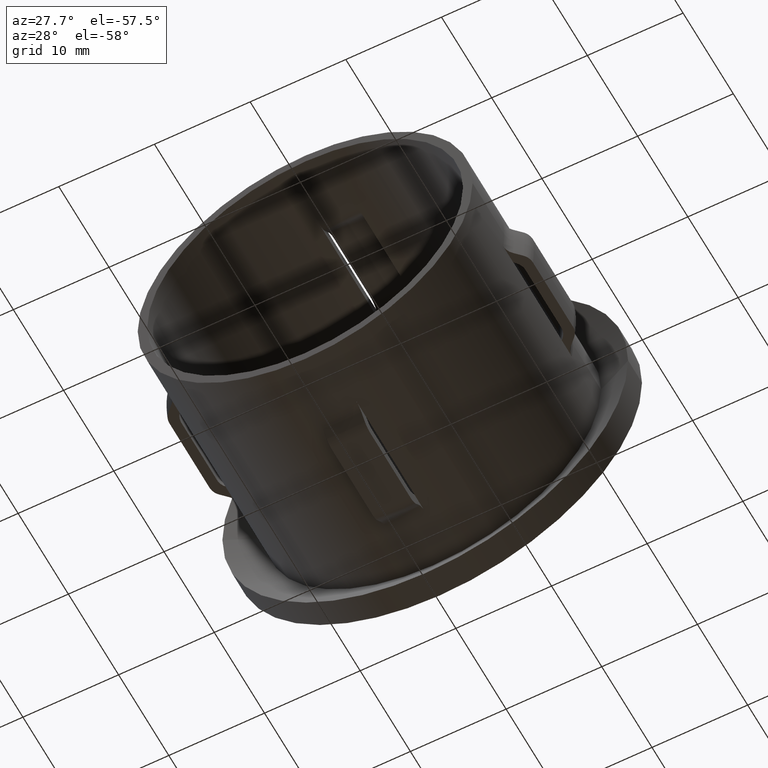
[diagram: clean part render]
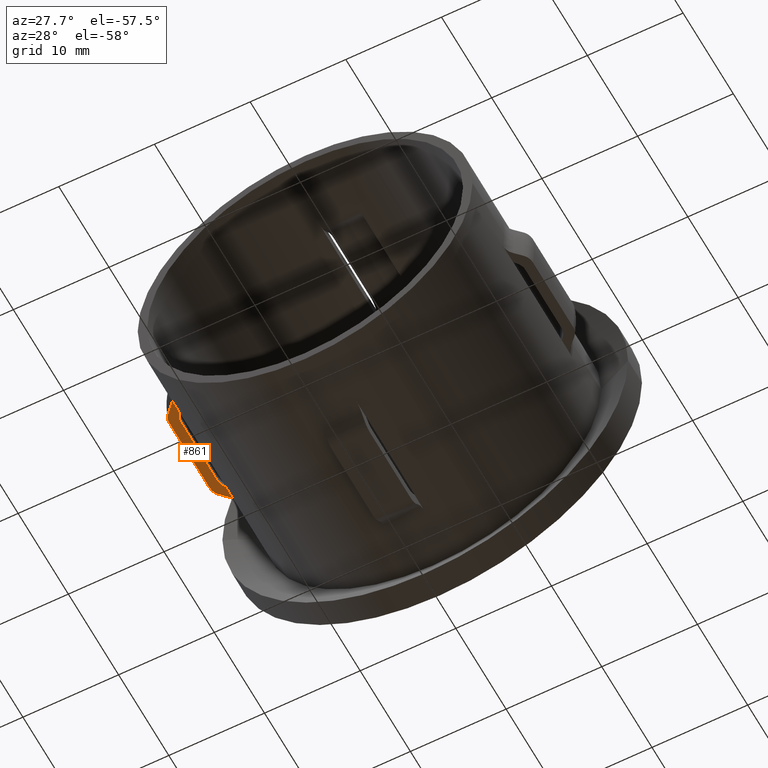
[diagram: same view with one face highlighted and labeled with its STEP entity id]
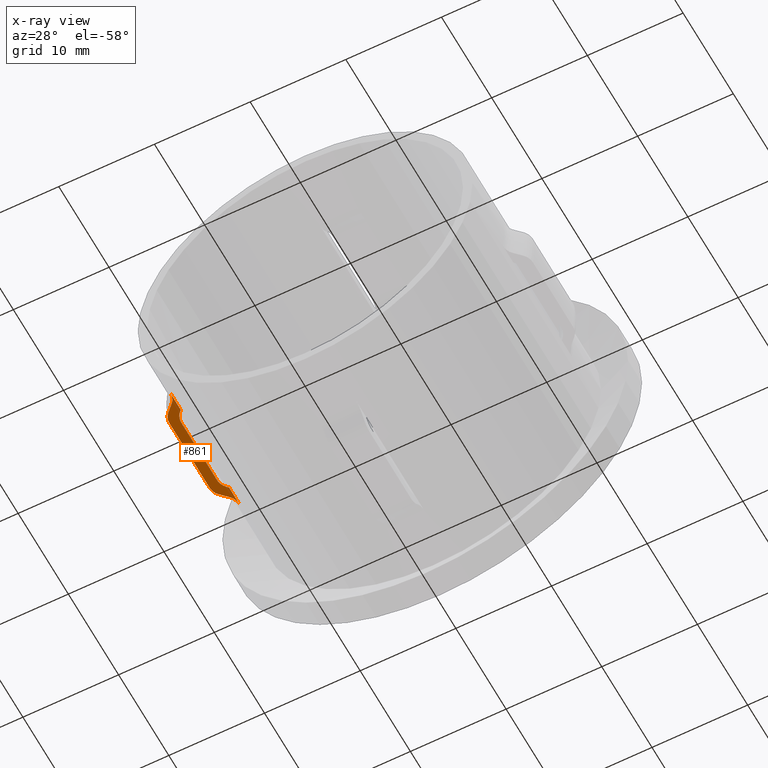
[diagram: x-ray of the same camera — body ghosted, the highlighted face saturated]
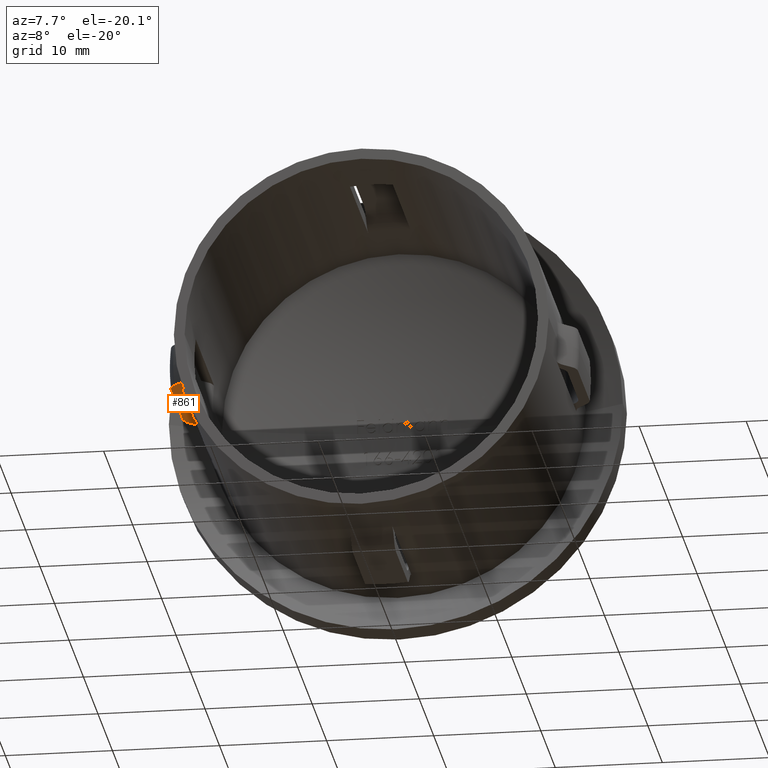
[diagram: same view with one face highlighted and labeled with its STEP entity id]
A machine part, auxiliary view. The second image highlights one B-rep face of the part: STEP entity #861.
The next image is the same camera in x-ray: the body ghosted, the highlighted face saturated — about 0% of this face is hidden behind the body in this view.
A second angle (auxiliary view) of the same face is appended — the face is thin or edge-on in the first view.
In plain terms, the highlighted planar face has unit normal (-0, 0, 1).
Its self-contained STEP definition (entity closure, byte-faithful):
#6 = ORIENTED_EDGE ( 'NONE', *, *, #6201, .T. ) ;
#80 = AXIS2_PLACEMENT_3D ( 'NONE', #12158, #8879, #12995 ) ;
#151 = CARTESIAN_POINT ( 'NONE',  ( -17.91707696693316300, 7.464392951746029700, -2.000000000000005800 ) ) ;
#198 = CARTESIAN_POINT ( 'NONE',  ( -18.47565482047987500, 18.29509002547517900, -2.000000000000005800 ) ) ;
#395 = CARTESIAN_POINT ( 'NONE',  ( -17.98916340467237200, 9.374426846787933700, -2.000000000000005800 ) ) ;
#427 = EDGE_CURVE ( 'NONE', #6335, #4319, #2676, .T. ) ;
#532 = CARTESIAN_POINT ( 'NONE',  ( -18.99499934193223900, 20.00000000000000000, -2.000000000000006200 ) ) ;
#536 = VERTEX_POINT ( 'NONE', #10250 ) ;
#628 = ORIENTED_EDGE ( 'NONE', *, *, #4672, .T. ) ;
#638 = CARTESIAN_POINT ( 'NONE',  ( -17.50892613694131900, 17.84168283548483200, -2.000000000000005300 ) ) ;
#759 = ORIENTED_EDGE ( 'NONE', *, *, #6165, .T. ) ;
#824 = CARTESIAN_POINT ( 'NONE',  ( -18.55317326083833200, 18.21801948466179900, -2.000000000000005800 ) ) ;
#861 = ADVANCED_FACE ( 'NONE', ( #10588 ), #7943, .F. ) ;
#1084 = ORIENTED_EDGE ( 'NONE', *, *, #11746, .T. ) ;
#1094 = B_SPLINE_CURVE_WITH_KNOTS ( 'NONE', 3,
 ( #3349, #11848, #12911, #1495, #13009, #3537 ),
 .UNSPECIFIED., .F., .F.,
 ( 4, 2, 4 ),
 ( 0.009288462586615928500, 0.009874882560755950100, 0.01046130253489597300 ),
 .UNSPECIFIED. ) ;
#1198 = CARTESIAN_POINT ( 'NONE',  ( -17.38533865071388000, 6.314718625761422300, -2.000000000000005300 ) ) ;
#1236 = VECTOR ( 'NONE', #12705, 1000.000000000000000 ) ;
#1246 = CARTESIAN_POINT ( 'NONE',  ( -18.55317326083746100, 8.096699141101002100, -2.000000000000005800 ) ) ;
#1282 = CARTESIAN_POINT ( 'NONE',  ( -17.38533865071375200, 20.00000000000010300, -2.000000000000005800 ) ) ;
#1338 = CARTESIAN_POINT ( 'NONE',  ( -17.68725236648193900, 7.236001098021237300, -2.000000000000005800 ) ) ;
#1403 = CARTESIAN_POINT ( 'NONE',  ( -17.68572502575161200, 8.648696931519966200, -2.000000000000005300 ) ) ;
#1495 = CARTESIAN_POINT ( 'NONE',  ( -17.42437800737898700, 19.60781667816417300, -2.000000000000005300 ) ) ;
#1499 = CARTESIAN_POINT ( 'NONE',  ( -17.68556931965886000, 17.66617639867304800, -2.000000000000004900 ) ) ;
#1626 = VERTEX_POINT ( 'NONE', #10156 ) ;
#1778 = B_SPLINE_CURVE_WITH_KNOTS ( 'NONE', 3,
 ( #7867, #1499, #6772, #8894, #11943, #9933 ),
 .UNSPECIFIED., .F., .F.,
 ( 4, 2, 4 ),
 ( 0.008379490991793121400, 0.008965262327656981300, 0.009551033663520841100 ),
 .UNSPECIFIED. ) ;
#2024 = CARTESIAN_POINT ( 'NONE',  ( -18.55317326083833200, 18.21801948466179900, -2.000000000000005800 ) ) ;
#2028 = B_SPLINE_CURVE_WITH_KNOTS ( 'NONE', 3,
 ( #1246, #7607, #8689, #9723, #12065, #4734 ),
 .UNSPECIFIED., .F., .F.,
 ( 4, 2, 4 ),
 ( 0.009058246311685924300, 0.009644235711769741400, 0.01023022511185356000 ),
 .UNSPECIFIED. ) ;
#2065 = VERTEX_POINT ( 'NONE', #13390 ) ;
#2182 = CARTESIAN_POINT ( 'NONE',  ( -17.54704868925524500, 8.510912703474087200, -2.000000000000005300 ) ) ;
#2205 = EDGE_CURVE ( 'NONE', #12224, #1626, #12558, .T. ) ;
#2305 = CARTESIAN_POINT ( 'NONE',  ( -17.82750440954562500, 18.93933982822028400, -2.000000000000005800 ) ) ;
#2318 = CARTESIAN_POINT ( 'NONE',  ( -17.54704868925524500, 8.510912703474087200, -2.000000000000005300 ) ) ;
#2371 = EDGE_CURVE ( 'NONE', #2065, #8113, #1778, .T. ) ;
#2395 = CARTESIAN_POINT ( 'NONE',  ( -18.51441438742121900, 18.25655510383304000, -2.000000000000005800 ) ) ;
#2530 = VERTEX_POINT ( 'NONE', #3638 ) ;
#2569 = ORIENTED_EDGE ( 'NONE', *, *, #12100, .T. ) ;
#2676 = LINE ( 'NONE', #532, #10458 ) ;
#3043 = ORIENTED_EDGE ( 'NONE', *, *, #427, .F. ) ;
#3082 = B_SPLINE_CURVE_WITH_KNOTS ( 'NONE', 3,
 ( #7930, #4869, #3735, #13116, #638, #11098, #12233 ),
 .UNSPECIFIED., .F., .F.,
 ( 4, 3, 4 ),
 ( 0.001391506068155356800, 0.001538847408787380600, 0.001619457434272390300 ),
 .UNSPECIFIED. ) ;
#3158 = CARTESIAN_POINT ( 'NONE',  ( -18.55317326083746100, 8.096699141101002100, -2.000000000000005800 ) ) ;
#3246 = CARTESIAN_POINT ( 'NONE',  ( -18.09620975867423500, 7.642433659921841200, -2.000000000000005800 ) ) ;
#3349 = CARTESIAN_POINT ( 'NONE',  ( -17.82750440954562500, 18.93933982822028400, -2.000000000000005800 ) ) ;
#3438 = B_SPLINE_CURVE_WITH_KNOTS ( 'NONE', 3,
 ( #9340, #12529, #7303, #8369, #13630, #2024 ),
 .UNSPECIFIED., .F., .F.,
 ( 4, 2, 4 ),
 ( 0.009110308732903679700, 0.009696500257975542200, 0.01028269178304740500 ),
 .UNSPECIFIED. ) ;
#3490 = VERTEX_POINT ( 'NONE', #8923 ) ;
#3537 = CARTESIAN_POINT ( 'NONE',  ( -17.38533865071375200, 20.00000000000010300, -2.000000000000005800 ) ) ;
#3631 = ORIENTED_EDGE ( 'NONE', *, *, #2371, .T. ) ;
#3638 = CARTESIAN_POINT ( 'NONE',  ( -18.55317326083746100, 8.096699141101002100, -2.000000000000005800 ) ) ;
#3735 = CARTESIAN_POINT ( 'NONE',  ( -17.45502326312337600, 17.89523670153413100, -2.000000000000005300 ) ) ;
#3843 = VECTOR ( 'NONE', #12694, 1000.000000000000000 ) ;
#3847 = ORIENTED_EDGE ( 'NONE', *, *, #6959, .T. ) ;
#4048 = LINE ( 'NONE', #6599, #1236 ) ;
#4307 = CARTESIAN_POINT ( 'NONE',  ( -17.82750440954569300, 7.375378797541349000, -2.000000000000005800 ) ) ;
#4319 = VERTEX_POINT ( 'NONE', #13307 ) ;
#4375 = CARTESIAN_POINT ( 'NONE',  ( -17.38533865071382000, 6.511921298075505700, -2.000000000000005300 ) ) ;
#4513 = EDGE_CURVE ( 'NONE', #6452, #9403, #12417, .T. ) ;
#4529 = CARTESIAN_POINT ( 'NONE',  ( -17.95027609387199200, 9.179818459428782200, -2.000000000000006200 ) ) ;
#4672 = EDGE_CURVE ( 'NONE', #3490, #6452, #9981, .T. ) ;
#4734 = CARTESIAN_POINT ( 'NONE',  ( -18.99499934193223900, 9.157359312880760900, -2.000000000000006200 ) ) ;
#4869 = CARTESIAN_POINT ( 'NONE',  ( -17.42018129667730300, 17.92985173980662600, -2.000000000000005300 ) ) ;
#5110 = VECTOR ( 'NONE', #9062, 1000.000000000000000 ) ;
#5151 = CARTESIAN_POINT ( 'NONE',  ( -17.38533865071388000, 8.350252531694286200, -2.000000000000005300 ) ) ;
#5152 = EDGE_CURVE ( 'NONE', #8113, #3490, #6935, .T. ) ;
#5334 = B_SPLINE_CURVE_WITH_KNOTS ( 'NONE', 3,
 ( #5405, #151, #12722, #3246, #9479, #8470, #3158 ),
 .UNSPECIFIED., .F., .F.,
 ( 4, 3, 4 ),
 ( 0.002502640256380175300, 0.002881481711007946900, 0.003525820694122491100 ),
 .UNSPECIFIED. ) ;
#5405 = CARTESIAN_POINT ( 'NONE',  ( -17.82750440954569300, 7.375378797541349000, -2.000000000000005800 ) ) ;
#6137 = CARTESIAN_POINT ( 'NONE',  ( -17.54704868925524500, 8.510912703474087200, -2.000000000000005300 ) ) ;
#6165 = EDGE_CURVE ( 'NONE', #10539, #2530, #5334, .T. ) ;
#6201 = EDGE_CURVE ( 'NONE', #10752, #8895, #10233, .T. ) ;
#6335 = VERTEX_POINT ( 'NONE', #10121 ) ;
#6452 = VERTEX_POINT ( 'NONE', #2182 ) ;
#6539 = CARTESIAN_POINT ( 'NONE',  ( -17.98916340467237200, 9.571572875253810500, -2.000000000000005800 ) ) ;
#6578 = ORIENTED_EDGE ( 'NONE', *, *, #12769, .T. ) ;
#6587 = CARTESIAN_POINT ( 'NONE',  ( -17.38533865071388000, 8.350252531694286200, -2.000000000000005300 ) ) ;
#6599 = CARTESIAN_POINT ( 'NONE',  ( -17.38533865071388000, 20.00000000000000000, -2.000000000000005300 ) ) ;
#6687 = EDGE_LOOP ( 'NONE', ( #7435, #7113, #6578, #3631, #12882, #628, #9828, #2569, #3847, #759, #12466, #3043, #1084, #6 ) ) ;
#6772 = CARTESIAN_POINT ( 'NONE',  ( -17.79791893002655800, 17.49967531331982000, -2.000000000000005300 ) ) ;
#6809 = CARTESIAN_POINT ( 'NONE',  ( -17.98916340467231500, 28.90000000000004800, -2.000000000000005800 ) ) ;
#6935 = LINE ( 'NONE', #6809, #5110 ) ;
#6959 = EDGE_CURVE ( 'NONE', #536, #10539, #12245, .T. ) ;
#6981 = EDGE_CURVE ( 'NONE', #2530, #4319, #2028, .T. ) ;
#7113 = ORIENTED_EDGE ( 'NONE', *, *, #2205, .T. ) ;
#7237 = CARTESIAN_POINT ( 'NONE',  ( -17.42018129667726000, 8.384866885954899400, -2.000000000000005300 ) ) ;
#7303 = CARTESIAN_POINT ( 'NONE',  ( -18.95497577591450500, 17.55228834799384400, -2.000000000000006200 ) ) ;
#7326 = CARTESIAN_POINT ( 'NONE',  ( -17.38533865071388000, 20.00000000000000000, -2.000000000000005300 ) ) ;
#7435 = ORIENTED_EDGE ( 'NONE', *, *, #9443, .T. ) ;
#7607 = CARTESIAN_POINT ( 'NONE',  ( -18.69316570677154800, 8.235885219230825200, -2.000000000000005800 ) ) ;
#7655 = CARTESIAN_POINT ( 'NONE',  ( -17.42454143816086900, 6.707255492531341000, -2.000000000000005300 ) ) ;
#7867 = CARTESIAN_POINT ( 'NONE',  ( -17.54704868925519200, 17.80380592228754500, -2.000000000000005300 ) ) ;
#7930 = CARTESIAN_POINT ( 'NONE',  ( -17.38533865071388000, 17.96446609406720900, -2.000000000000005300 ) ) ;
#7943 = PLANE ( 'NONE',  #80 ) ;
#8113 = VERTEX_POINT ( 'NONE', #10466 ) ;
#8369 = CARTESIAN_POINT ( 'NONE',  ( -18.80433843613719000, 17.91300552684635200, -2.000000000000006200 ) ) ;
#8470 = CARTESIAN_POINT ( 'NONE',  ( -18.40086307191207000, 7.945266271175145600, -2.000000000000005800 ) ) ;
#8589 = CARTESIAN_POINT ( 'NONE',  ( -17.82750440954562500, 18.93933982822028400, -2.000000000000005800 ) ) ;
#8689 = CARTESIAN_POINT ( 'NONE',  ( -18.80548881121029200, 8.403729032305358600, -2.000000000000006200 ) ) ;
#8879 = DIRECTION ( 'NONE',  ( -3.572540394831533200E-016, 8.750200318710256200E-033, 1.000000000000000000 ) ) ;
#8894 = CARTESIAN_POINT ( 'NONE',  ( -17.94907361992872900, 17.13839461924661500, -2.000000000000005300 ) ) ;
#8895 = VERTEX_POINT ( 'NONE', #8589 ) ;
#8923 = CARTESIAN_POINT ( 'NONE',  ( -17.98916340467237200, 9.571572875253810500, -2.000000000000005800 ) ) ;
#9062 = DIRECTION ( 'NONE',  ( -2.904862207577519400E-015, -1.000000000000000000, -0.0000000000000000000 ) ) ;
#9340 = CARTESIAN_POINT ( 'NONE',  ( -18.99499934193223900, 17.15735931288071100, -2.000000000000006200 ) ) ;
#9360 = CARTESIAN_POINT ( 'NONE',  ( -17.45502326312333000, 8.419481924227390800, -2.000000000000005300 ) ) ;
#9403 = VERTEX_POINT ( 'NONE', #6587 ) ;
#9443 = EDGE_CURVE ( 'NONE', #8895, #12224, #1094, .T. ) ;
#9479 = CARTESIAN_POINT ( 'NONE',  ( -18.24854217925797400, 7.793844166108060600, -2.000000000000005800 ) ) ;
#9723 = CARTESIAN_POINT ( 'NONE',  ( -18.95551127229825300, 8.764459677352864000, -2.000000000000005800 ) ) ;
#9824 = CARTESIAN_POINT ( 'NONE',  ( -18.43689454692432500, 18.33362423634517300, -2.000000000000005800 ) ) ;
#9828 = ORIENTED_EDGE ( 'NONE', *, *, #4513, .T. ) ;
#9933 = CARTESIAN_POINT ( 'NONE',  ( -17.98916340467451400, 16.74314575050795300, -2.000000000000005800 ) ) ;
#9981 = B_SPLINE_CURVE_WITH_KNOTS ( 'NONE', 3,
 ( #6539, #395, #4529, #12872, #1403, #2318 ),
 .UNSPECIFIED., .F., .F.,
 ( 4, 2, 4 ),
 ( 0.008557415240390577700, 0.009143349752370261800, 0.009729284264349944200 ),
 .UNSPECIFIED. ) ;
#10121 = CARTESIAN_POINT ( 'NONE',  ( -18.99499934193223900, 17.15735931288071100, -2.000000000000006200 ) ) ;
#10156 = CARTESIAN_POINT ( 'NONE',  ( -17.38533865071388000, 17.96446609406720900, -2.000000000000005300 ) ) ;
#10233 = B_SPLINE_CURVE_WITH_KNOTS ( 'NONE', 3,
 ( #11784, #2395, #198, #9824, #11885, #12999, #2305 ),
 .UNSPECIFIED., .F., .F.,
 ( 4, 3, 4 ),
 ( 0.002717514562751311600, 0.002881481620209056800, 0.003740695040385866600 ),
 .UNSPECIFIED. ) ;
#10250 = CARTESIAN_POINT ( 'NONE',  ( -17.38533865071388000, 6.314718625761422300, -2.000000000000005300 ) ) ;
#10411 = CARTESIAN_POINT ( 'NONE',  ( -17.48986456204518100, 8.454097634360891800, -2.000000000000005300 ) ) ;
#10458 = VECTOR ( 'NONE', #13278, 1000.000000000000000 ) ;
#10466 = CARTESIAN_POINT ( 'NONE',  ( -17.98916340467451400, 16.74314575050795300, -2.000000000000005800 ) ) ;
#10501 = CARTESIAN_POINT ( 'NONE',  ( -17.52798751203524200, 8.491974147298911600, -2.000000000000005300 ) ) ;
#10539 = VERTEX_POINT ( 'NONE', #4307 ) ;
#10588 = FACE_OUTER_BOUND ( 'NONE', #6687, .T. ) ;
#10752 = VERTEX_POINT ( 'NONE', #824 ) ;
#11098 = CARTESIAN_POINT ( 'NONE',  ( -17.52798751203522800, 17.82274447846268100, -2.000000000000005300 ) ) ;
#11736 = CARTESIAN_POINT ( 'NONE',  ( -17.82750440954569300, 7.375378797541349000, -2.000000000000005800 ) ) ;
#11746 = EDGE_CURVE ( 'NONE', #6335, #10752, #3438, .T. ) ;
#11784 = CARTESIAN_POINT ( 'NONE',  ( -18.55317326083833200, 18.21801948466179900, -2.000000000000005800 ) ) ;
#11848 = CARTESIAN_POINT ( 'NONE',  ( -17.68762060342852000, 19.07835158641517700, -2.000000000000005800 ) ) ;
#11885 = CARTESIAN_POINT ( 'NONE',  ( -18.23378456336046600, 18.53554961556709600, -2.000000000000005800 ) ) ;
#11943 = CARTESIAN_POINT ( 'NONE',  ( -17.98916340467232200, 16.93896679461478200, -2.000000000000005800 ) ) ;
#12065 = CARTESIAN_POINT ( 'NONE',  ( -18.99499934193218900, 8.961835131954606100, -2.000000000000006200 ) ) ;
#12100 = EDGE_CURVE ( 'NONE', #9403, #536, #4048, .T. ) ;
#12158 = CARTESIAN_POINT ( 'NONE',  ( 1.204366798625255300E-015, 20.00000000000000000, -1.999999999999999100 ) ) ;
#12224 = VERTEX_POINT ( 'NONE', #1282 ) ;
#12233 = CARTESIAN_POINT ( 'NONE',  ( -17.54704868925519200, 17.80380592228754500, -2.000000000000005300 ) ) ;
#12245 = B_SPLINE_CURVE_WITH_KNOTS ( 'NONE', 3,
 ( #1198, #4375, #7655, #12803, #1338, #11736 ),
 .UNSPECIFIED., .F., .F.,
 ( 4, 2, 4 ),
 ( 0.009260882988404814400, 0.009847264564994271500, 0.01043364614158373000 ),
 .UNSPECIFIED. ) ;
#12417 = B_SPLINE_CURVE_WITH_KNOTS ( 'NONE', 3,
 ( #6137, #10501, #13606, #10411, #9360, #7237, #5151 ),
 .UNSPECIFIED., .F., .F.,
 ( 4, 3, 4 ),
 ( 0.001458237375091850000, 0.001538847400985701100, 0.001686188742364704400 ),
 .UNSPECIFIED. ) ;
#12466 = ORIENTED_EDGE ( 'NONE', *, *, #6981, .T. ) ;
#12529 = CARTESIAN_POINT ( 'NONE',  ( -18.99499934193216100, 17.35545052147436700, -2.000000000000006200 ) ) ;
#12558 = LINE ( 'NONE', #7326, #3843 ) ;
#12694 = DIRECTION ( 'NONE',  ( -2.449293598294745400E-017, -1.000000000000000000, -0.0000000000000000000 ) ) ;
#12705 = DIRECTION ( 'NONE',  ( -2.449293598294745400E-017, -1.000000000000000000, -0.0000000000000000000 ) ) ;
#12722 = CARTESIAN_POINT ( 'NONE',  ( -18.00664535620850900, 7.553411300389734100, -2.000000000000005800 ) ) ;
#12769 = EDGE_CURVE ( 'NONE', #1626, #2065, #3082, .T. ) ;
#12803 = CARTESIAN_POINT ( 'NONE',  ( -17.57632696097574200, 7.071031530395241100, -2.000000000000005300 ) ) ;
#12872 = CARTESIAN_POINT ( 'NONE',  ( -17.79810545226453700, 8.814874382095556600, -2.000000000000005800 ) ) ;
#12882 = ORIENTED_EDGE ( 'NONE', *, *, #5152, .T. ) ;
#12911 = CARTESIAN_POINT ( 'NONE',  ( -17.57657599610208300, 19.24312840865508900, -2.000000000000005800 ) ) ;
#12995 = DIRECTION ( 'NONE',  ( 1.000000000000000000, 0.0000000000000000000, 3.572540394831533200E-016 ) ) ;
#12999 = CARTESIAN_POINT ( 'NONE',  ( -18.03065519701955900, 18.73745550058203700, -2.000000000000005800 ) ) ;
#13009 = CARTESIAN_POINT ( 'NONE',  ( -17.38533865071375200, 19.80275522031470500, -2.000000000000005300 ) ) ;
#13116 = CARTESIAN_POINT ( 'NONE',  ( -17.48986456204523800, 17.86062099140062600, -2.000000000000005300 ) ) ;
#13278 = DIRECTION ( 'NONE',  ( -2.449293598294745400E-017, -1.000000000000000000, -0.0000000000000000000 ) ) ;
#13307 = CARTESIAN_POINT ( 'NONE',  ( -18.99499934193223900, 9.157359312880760900, -2.000000000000006200 ) ) ;
#13390 = CARTESIAN_POINT ( 'NONE',  ( -17.54704868925519200, 17.80380592228754500, -2.000000000000005300 ) ) ;
#13606 = CARTESIAN_POINT ( 'NONE',  ( -17.50892613694130200, 8.473035790276721700, -2.000000000000005300 ) ) ;
#13630 = CARTESIAN_POINT ( 'NONE',  ( -18.69219301914311900, 18.07980049139990400, -2.000000000000005800 ) ) ;